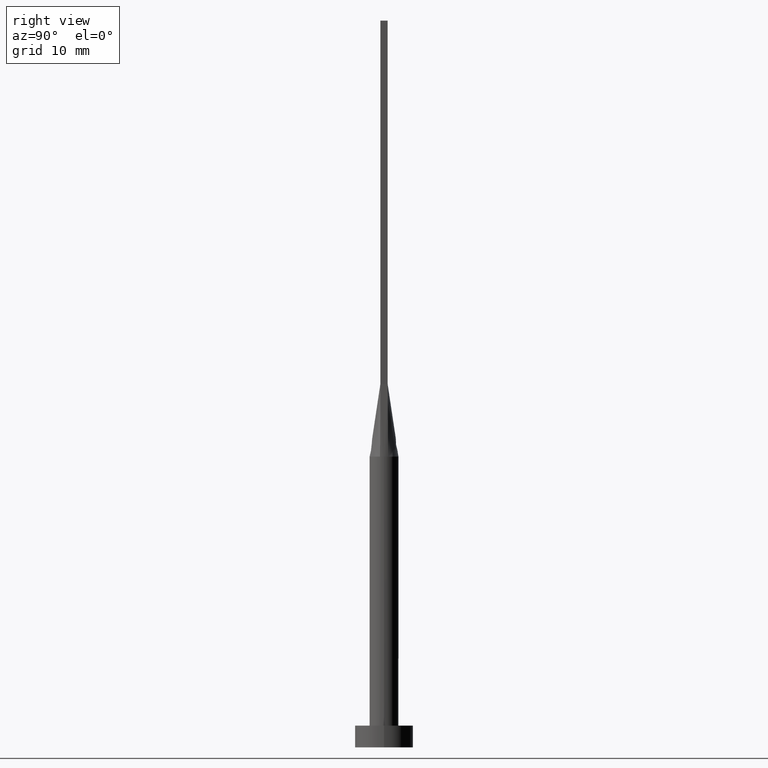
[diagram: clean part render]
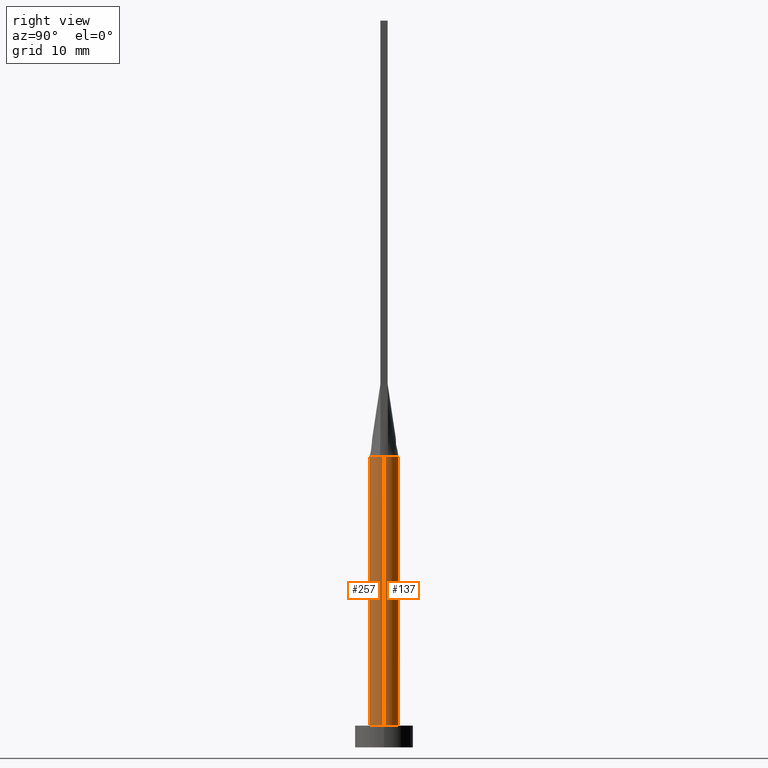
[diagram: same view with one multi-face feature highlighted, each face labeled with its STEP entity id]
A machine part, right view. The highlighted faces form ONE feature: a constant-radius fillet chain: 2 tangent blend faces with common blend radius 2 mm. The faces share edges in the B-rep.
Their STEP definitions:
[1] entity #257 (Cylinder):
#9 = EDGE_CURVE ( 'NONE', #535, #120, #44, .T. ) ;
#12 = VERTEX_POINT ( 'NONE', #51 ) ;
#24 = ORIENTED_EDGE ( 'NONE', *, *, #476, .F. ) ;
#28 = CIRCLE ( 'NONE', #138, 2.000000000000000000 ) ;
#34 = CARTESIAN_POINT ( 'NONE',  ( 1.923186205402444449, -0.5494823831763672173, 40.00000000000000000 ) ) ;
#44 = CIRCLE ( 'NONE', #439, 2.000000000000000000 ) ;
#51 = CARTESIAN_POINT ( 'NONE',  ( 2.000000000000000000, 2.449293598294706414E-16, 3.000000000000000000 ) ) ;
#52 = CARTESIAN_POINT ( 'NONE',  ( -2.000000000000000000, 0.000000000000000000, 3.000000000000000000 ) ) ;
#56 = DIRECTION ( 'NONE',  ( 0.000000000000000000, 0.000000000000000000, 1.000000000000000000 ) ) ;
#65 = DIRECTION ( 'NONE',  ( -0.000000000000000000, -0.000000000000000000, -1.000000000000000000 ) ) ;
#101 = EDGE_LOOP ( 'NONE', ( #24, #287, #402, #379, #496, #516 ) ) ;
#120 = VERTEX_POINT ( 'NONE', #34 ) ;
#129 = VERTEX_POINT ( 'NONE', #577 ) ;
#138 = AXIS2_PLACEMENT_3D ( 'NONE', #176, #354, #320 ) ;
#155 = CARTESIAN_POINT ( 'NONE',  ( 2.000000000000000000, 2.449293598294706414E-16, 40.00000000000000000 ) ) ;
#165 = CARTESIAN_POINT ( 'NONE',  ( -2.000000000000000000, 0.000000000000000000, 40.00000000000000000 ) ) ;
#176 = CARTESIAN_POINT ( 'NONE',  ( 0.000000000000000000, 0.000000000000000000, 40.00000000000000000 ) ) ;
#177 = CARTESIAN_POINT ( 'NONE',  ( 0.000000000000000000, 0.000000000000000000, 40.00000000000000000 ) ) ;
#179 = AXIS2_PLACEMENT_3D ( 'NONE', #238, #253, #473 ) ;
#180 = VERTEX_POINT ( 'NONE', #52 ) ;
#205 = CARTESIAN_POINT ( 'NONE',  ( 0.000000000000000000, 0.000000000000000000, 40.00000000000000000 ) ) ;
#238 = CARTESIAN_POINT ( 'NONE',  ( 0.000000000000000000, 0.000000000000000000, 3.000000000000000000 ) ) ;
#253 = DIRECTION ( 'NONE',  ( 0.000000000000000000, 0.000000000000000000, 1.000000000000000000 ) ) ;
#257 = ADVANCED_FACE ( 'NONE', ( #565 ), #472, .T. ) ;
#273 = AXIS2_PLACEMENT_3D ( 'NONE', #205, #344, #340 ) ;
#276 = DIRECTION ( 'NONE',  ( 1.000000000000000000, 0.000000000000000000, 0.000000000000000000 ) ) ;
#287 = ORIENTED_EDGE ( 'NONE', *, *, #444, .F. ) ;
#298 = VECTOR ( 'NONE', #65, 1000.000000000000000 ) ;
#304 = DIRECTION ( 'NONE',  ( 1.000000000000000000, 0.000000000000000000, 0.000000000000000000 ) ) ;
#320 = DIRECTION ( 'NONE',  ( 1.000000000000000000, 3.552713678800500929E-15, 0.000000000000000000 ) ) ;
#321 = EDGE_CURVE ( 'NONE', #129, #180, #517, .T. ) ;
#336 = CIRCLE ( 'NONE', #549, 2.000000000000000000 ) ;
#340 = DIRECTION ( 'NONE',  ( -1.000000000000000000, 0.000000000000000000, 0.000000000000000000 ) ) ;
#344 = DIRECTION ( 'NONE',  ( -0.000000000000000000, -0.000000000000000000, -1.000000000000000000 ) ) ;
#347 = DIRECTION ( 'NONE',  ( -0.000000000000000000, -0.000000000000000000, -1.000000000000000000 ) ) ;
#354 = DIRECTION ( 'NONE',  ( 0.000000000000000000, 0.000000000000000000, 1.000000000000000000 ) ) ;
#373 = CIRCLE ( 'NONE', #179, 2.000000000000000000 ) ;
#379 = ORIENTED_EDGE ( 'NONE', *, *, #426, .F. ) ;
#402 = ORIENTED_EDGE ( 'NONE', *, *, #9, .F. ) ;
#416 = VERTEX_POINT ( 'NONE', #492 ) ;
#426 = EDGE_CURVE ( 'NONE', #129, #535, #336, .T. ) ;
#436 = VECTOR ( 'NONE', #347, 1000.000000000000000 ) ;
#439 = AXIS2_PLACEMENT_3D ( 'NONE', #177, #581, #304 ) ;
#440 = CARTESIAN_POINT ( 'NONE',  ( 0.000000000000000000, 0.000000000000000000, 40.00000000000000000 ) ) ;
#444 = EDGE_CURVE ( 'NONE', #120, #416, #28, .T. ) ;
#451 = LINE ( 'NONE', #155, #298 ) ;
#456 = CARTESIAN_POINT ( 'NONE',  ( -1.923161340940673369, -0.5494751859438878894, 40.00000000000000000 ) ) ;
#472 = CYLINDRICAL_SURFACE ( 'NONE', #273, 2.000000000000000000 ) ;
#473 = DIRECTION ( 'NONE',  ( 1.000000000000000000, 0.000000000000000000, 0.000000000000000000 ) ) ;
#476 = EDGE_CURVE ( 'NONE', #416, #12, #451, .T. ) ;
#492 = CARTESIAN_POINT ( 'NONE',  ( 2.000000000000000000, 2.759698982225367658E-17, 39.99999999999999289 ) ) ;
#496 = ORIENTED_EDGE ( 'NONE', *, *, #321, .T. ) ;
#516 = ORIENTED_EDGE ( 'NONE', *, *, #544, .T. ) ;
#517 = LINE ( 'NONE', #165, #436 ) ;
#535 = VERTEX_POINT ( 'NONE', #456 ) ;
#544 = EDGE_CURVE ( 'NONE', #180, #12, #373, .T. ) ;
#549 = AXIS2_PLACEMENT_3D ( 'NONE', #440, #56, #276 ) ;
#565 = FACE_OUTER_BOUND ( 'NONE', #101, .T. ) ;
#577 = CARTESIAN_POINT ( 'NONE',  ( -2.000000000000000000, 8.710755549421510381E-17, 39.99999999999999289 ) ) ;
#581 = DIRECTION ( 'NONE',  ( 0.000000000000000000, 0.000000000000000000, 1.000000000000000000 ) ) ;
[2] entity #137 (Cylinder):
#1 = ORIENTED_EDGE ( 'NONE', *, *, #476, .T. ) ;
#4 = DIRECTION ( 'NONE',  ( 0.000000000000000000, 0.000000000000000000, 1.000000000000000000 ) ) ;
#11 = CARTESIAN_POINT ( 'NONE',  ( -1.879022738048941710, 0.7035303061092221810, 40.00000000000000000 ) ) ;
#12 = VERTEX_POINT ( 'NONE', #51 ) ;
#18 = CARTESIAN_POINT ( 'NONE',  ( -1.155438169178558017, 1.647245198242353936, 40.00000000000001421 ) ) ;
#35 = AXIS2_PLACEMENT_3D ( 'NONE', #443, #299, #309 ) ;
#46 = CARTESIAN_POINT ( 'NONE',  ( 0.000000000000000000, 0.000000000000000000, 3.000000000000000000 ) ) ;
#51 = CARTESIAN_POINT ( 'NONE',  ( 2.000000000000000000, 2.449293598294706414E-16, 3.000000000000000000 ) ) ;
#52 = CARTESIAN_POINT ( 'NONE',  ( -2.000000000000000000, 0.000000000000000000, 3.000000000000000000 ) ) ;
#59 = CARTESIAN_POINT ( 'NONE',  ( -1.812374357931688884, 0.8669367617086288780, 40.00000000000001421 ) ) ;
#65 = DIRECTION ( 'NONE',  ( -0.000000000000000000, -0.000000000000000000, -1.000000000000000000 ) ) ;
#69 = CARTESIAN_POINT ( 'NONE',  ( 0.5022746254375803909, 1.951069421695587947, 40.00000000000000000 ) ) ;
#90 = EDGE_CURVE ( 'NONE', #12, #180, #421, .T. ) ;
#116 = EDGE_CURVE ( 'NONE', #531, #129, #314, .T. ) ;
#121 = B_SPLINE_CURVE_WITH_KNOTS ( 'NONE', 3,
 ( #197, #550, #334, #156, #288, #332, #461, #69, #244, #412, #503, #196, #18, #235, #419, #59, #11, #371 ),
 .UNSPECIFIED., .F., .F.,
 ( 4, 2, 2, 2, 2, 2, 2, 2, 4 ),
 ( 0.000000000000000000, 0.1249999999999999722, 0.2500000000000000000, 0.3750000000000000000, 0.5000000000000001110, 0.6250000000000001110, 0.7500000000000000000, 0.8750000000000000000, 1.000000000000000000 ),
 .UNSPECIFIED. ) ;
#127 = EDGE_LOOP ( 'NONE', ( #233, #1, #234, #475, #270, #291 ) ) ;
#129 = VERTEX_POINT ( 'NONE', #577 ) ;
#133 = DIRECTION ( 'NONE',  ( 0.000000000000000000, 0.000000000000000000, 1.000000000000000000 ) ) ;
#137 = ADVANCED_FACE ( 'NONE', ( #493 ), #275, .T. ) ;
#141 = AXIS2_PLACEMENT_3D ( 'NONE', #429, #133, #219 ) ;
#155 = CARTESIAN_POINT ( 'NONE',  ( 2.000000000000000000, 2.449293598294706414E-16, 40.00000000000000000 ) ) ;
#156 = CARTESIAN_POINT ( 'NONE',  ( 1.616149014776643522, 1.193458220519943103, 40.00000000000000000 ) ) ;
#165 = CARTESIAN_POINT ( 'NONE',  ( -2.000000000000000000, 0.000000000000000000, 40.00000000000000000 ) ) ;
#170 = CIRCLE ( 'NONE', #223, 2.000000000000000000 ) ;
#180 = VERTEX_POINT ( 'NONE', #52 ) ;
#196 = CARTESIAN_POINT ( 'NONE',  ( -0.9545234919502401105, 1.774214358793530177, 40.00000000000000000 ) ) ;
#197 = CARTESIAN_POINT ( 'NONE',  ( 1.923154993136894975, 0.5494733089275741778, 40.00000000000000000 ) ) ;
#219 = DIRECTION ( 'NONE',  ( 1.000000000000000000, 0.000000000000000000, 0.000000000000000000 ) ) ;
#223 = AXIS2_PLACEMENT_3D ( 'NONE', #445, #4, #311 ) ;
#233 = ORIENTED_EDGE ( 'NONE', *, *, #398, .F. ) ;
#234 = ORIENTED_EDGE ( 'NONE', *, *, #90, .T. ) ;
#235 = CARTESIAN_POINT ( 'NONE',  ( -1.486037034853319616, 1.356520562679218056, 40.00000000000000000 ) ) ;
#244 = CARTESIAN_POINT ( 'NONE',  ( 0.2514338042514535632, 1.999999999999999556, 39.99999999999999289 ) ) ;
#260 = DIRECTION ( 'NONE',  ( 1.000000000000000000, 0.000000000000000000, 0.000000000000000000 ) ) ;
#270 = ORIENTED_EDGE ( 'NONE', *, *, #116, .F. ) ;
#275 = CYLINDRICAL_SURFACE ( 'NONE', #35, 2.000000000000000000 ) ;
#280 = CARTESIAN_POINT ( 'NONE',  ( 1.923154993136894975, 0.5494733089275741778, 40.00000000000000000 ) ) ;
#288 = CARTESIAN_POINT ( 'NONE',  ( 1.486037034853319616, 1.356520562679217834, 39.99999999999997868 ) ) ;
#291 = ORIENTED_EDGE ( 'NONE', *, *, #505, .F. ) ;
#298 = VECTOR ( 'NONE', #65, 1000.000000000000000 ) ;
#299 = DIRECTION ( 'NONE',  ( -0.000000000000000000, -0.000000000000000000, -1.000000000000000000 ) ) ;
#309 = DIRECTION ( 'NONE',  ( -1.000000000000000000, 0.000000000000000000, 0.000000000000000000 ) ) ;
#311 = DIRECTION ( 'NONE',  ( 1.000000000000000000, 0.000000000000000000, 0.000000000000000000 ) ) ;
#314 = CIRCLE ( 'NONE', #141, 2.000000000000000000 ) ;
#321 = EDGE_CURVE ( 'NONE', #129, #180, #517, .T. ) ;
#332 = CARTESIAN_POINT ( 'NONE',  ( 1.155438169178558461, 1.647245198242353714, 40.00000000000000000 ) ) ;
#334 = CARTESIAN_POINT ( 'NONE',  ( 1.812374357931689328, 0.8669367617086293221, 40.00000000000002132 ) ) ;
#347 = DIRECTION ( 'NONE',  ( -0.000000000000000000, -0.000000000000000000, -1.000000000000000000 ) ) ;
#371 = CARTESIAN_POINT ( 'NONE',  ( -1.923179810488875541, 0.5494804890868837388, 40.00000000000000000 ) ) ;
#398 = EDGE_CURVE ( 'NONE', #416, #490, #170, .T. ) ;
#400 = DIRECTION ( 'NONE',  ( 0.000000000000000000, 0.000000000000000000, 1.000000000000000000 ) ) ;
#412 = CARTESIAN_POINT ( 'NONE',  ( -0.2514338042514528415, 1.999999999999999556, 40.00000000000000000 ) ) ;
#416 = VERTEX_POINT ( 'NONE', #492 ) ;
#419 = CARTESIAN_POINT ( 'NONE',  ( -1.616149014776643966, 1.193458220519943103, 40.00000000000002132 ) ) ;
#421 = CIRCLE ( 'NONE', #554, 2.000000000000000000 ) ;
#429 = CARTESIAN_POINT ( 'NONE',  ( 0.000000000000000000, 0.000000000000000000, 40.00000000000000000 ) ) ;
#436 = VECTOR ( 'NONE', #347, 1000.000000000000000 ) ;
#443 = CARTESIAN_POINT ( 'NONE',  ( 0.000000000000000000, 0.000000000000000000, 40.00000000000000000 ) ) ;
#445 = CARTESIAN_POINT ( 'NONE',  ( 0.000000000000000000, 0.000000000000000000, 40.00000000000000000 ) ) ;
#451 = LINE ( 'NONE', #155, #298 ) ;
#461 = CARTESIAN_POINT ( 'NONE',  ( 0.9545234919502409987, 1.774214358793529955, 40.00000000000000000 ) ) ;
#475 = ORIENTED_EDGE ( 'NONE', *, *, #321, .F. ) ;
#476 = EDGE_CURVE ( 'NONE', #416, #12, #451, .T. ) ;
#490 = VERTEX_POINT ( 'NONE', #280 ) ;
#492 = CARTESIAN_POINT ( 'NONE',  ( 2.000000000000000000, 2.759698982225367658E-17, 39.99999999999999289 ) ) ;
#493 = FACE_OUTER_BOUND ( 'NONE', #127, .T. ) ;
#502 = CARTESIAN_POINT ( 'NONE',  ( -1.923179810488875541, 0.5494804890868837388, 40.00000000000000000 ) ) ;
#503 = CARTESIAN_POINT ( 'NONE',  ( -0.5022746254375797248, 1.951069421695588169, 40.00000000000000000 ) ) ;
#505 = EDGE_CURVE ( 'NONE', #490, #531, #121, .T. ) ;
#517 = LINE ( 'NONE', #165, #436 ) ;
#531 = VERTEX_POINT ( 'NONE', #502 ) ;
#550 = CARTESIAN_POINT ( 'NONE',  ( 1.879022738048942154, 0.7035303061092218480, 39.99999999999999289 ) ) ;
#554 = AXIS2_PLACEMENT_3D ( 'NONE', #46, #400, #260 ) ;
#577 = CARTESIAN_POINT ( 'NONE',  ( -2.000000000000000000, 8.710755549421510381E-17, 39.99999999999999289 ) ) ;